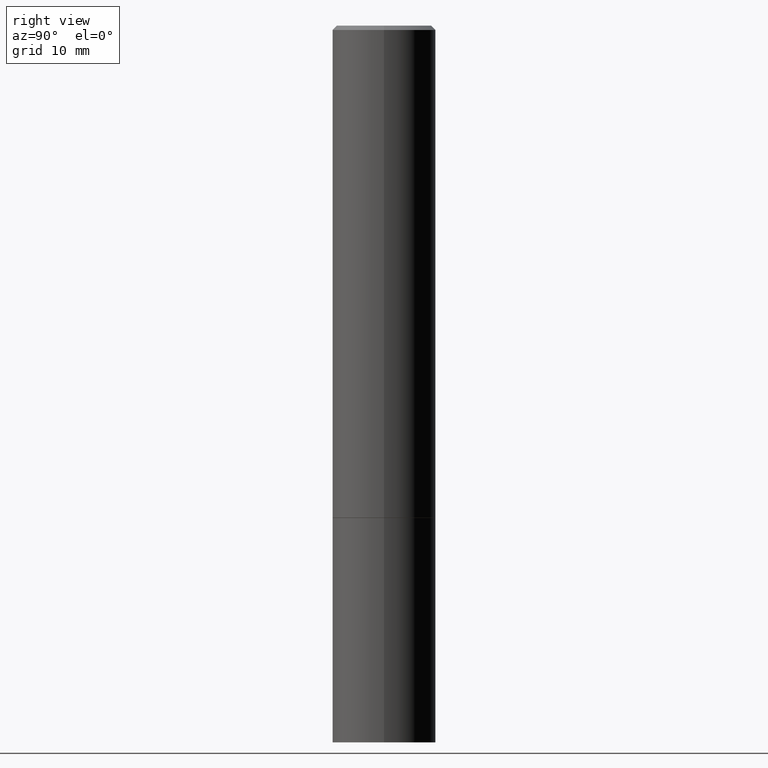
[diagram: clean part render]
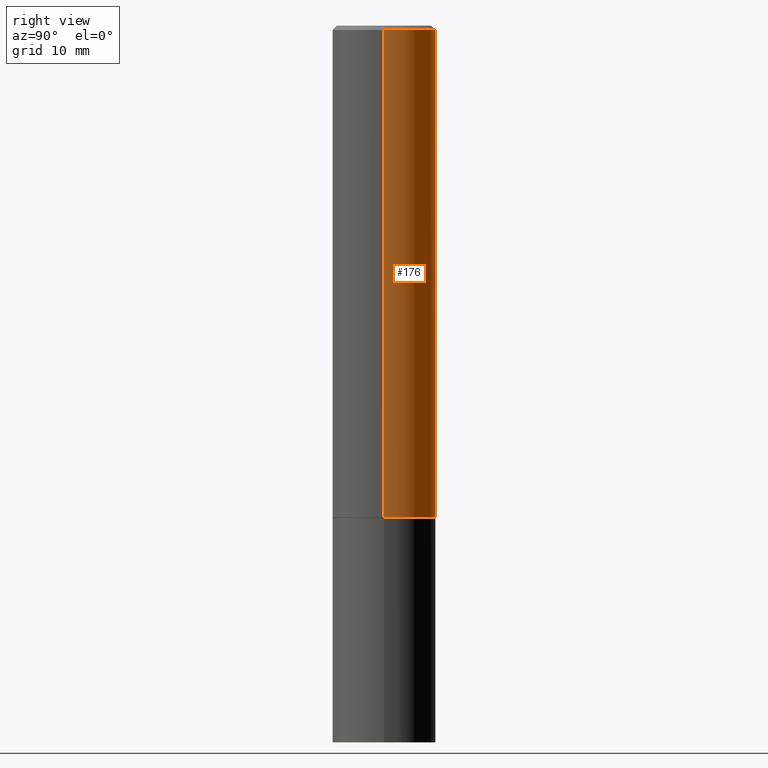
[diagram: same view with one face highlighted and labeled with its STEP entity id]
A machine part, right view. The second image highlights one B-rep face of the part: STEP entity #176.
In plain terms, the highlighted cylindrical surface (partial cylindrical patch) has radius 5.9995 mm, axis along (-0, 0, 1).
Its self-contained STEP definition (entity closure, byte-faithful):
#2 = DIRECTION ( 'NONE',  ( -2.445468806185136597E-29, 3.491481338843145583E-15, 1.000000000000000000 ) ) ;
#5 = EDGE_CURVE ( 'NONE', #178, #274, #170, .T. ) ;
#17 = CARTESIAN_POINT ( 'NONE',  ( 0.2361999999999999933, -9.481117575628557435E-15, -2.243100000000000094 ) ) ;
#31 = CARTESIAN_POINT ( 'NONE',  ( -0.2362000000000000210, -2.272483767102602555E-15, -2.243100000000000094 ) ) ;
#33 = EDGE_CURVE ( 'NONE', #274, #241, #222, .T. ) ;
#62 = AXIS2_PLACEMENT_3D ( 'NONE', #94, #318, #68 ) ;
#68 = DIRECTION ( 'NONE',  ( 1.000000000000000000, -6.982962677686266711E-15, 4.876176775795935793E-29 ) ) ;
#76 = ORIENTED_EDGE ( 'NONE', *, *, #276, .F. ) ;
#80 = CARTESIAN_POINT ( 'NONE',  ( 0.2361999999999998545, -1.649375784469495145E-15, 1.151752954442999387E-29 ) ) ;
#88 = DIRECTION ( 'NONE',  ( 1.000000000000000000, -6.982962677686269077E-15, 0.000000000000000000 ) ) ;
#94 = CARTESIAN_POINT ( 'NONE',  ( 0.000000000000000000, 0.000000000000000000, 0.000000000000000000 ) ) ;
#100 = ORIENTED_EDGE ( 'NONE', *, *, #33, .T. ) ;
#105 = EDGE_CURVE ( 'NONE', #178, #127, #345, .T. ) ;
#107 = DIRECTION ( 'NONE',  ( -2.445468806185136597E-29, 3.491481338843145583E-15, 1.000000000000000000 ) ) ;
#112 = EDGE_LOOP ( 'NONE', ( #272, #100, #76, #220 ) ) ;
#127 = VERTEX_POINT ( 'NONE', #133 ) ;
#132 = CARTESIAN_POINT ( 'NONE',  ( 4.890937612370285420E-31, -6.982962677686308865E-17, -0.02000000000000005246 ) ) ;
#133 = CARTESIAN_POINT ( 'NONE',  ( 0.2361999999999997157, -1.690279253850496996E-15, -0.02000000000000005246 ) ) ;
#170 = CIRCLE ( 'NONE', #301, 0.2361999999999999933 ) ;
#176 = ADVANCED_FACE ( 'NONE', ( #233 ), #235, .T. ) ;
#178 = VERTEX_POINT ( 'NONE', #17 ) ;
#194 = CIRCLE ( 'NONE', #361, 0.2361999999999997157 ) ;
#197 = CARTESIAN_POINT ( 'NONE',  ( 5.485431079153880270E-29, -7.831741791159060910E-15, -2.243100000000000094 ) ) ;
#220 = ORIENTED_EDGE ( 'NONE', *, *, #105, .F. ) ;
#222 = LINE ( 'NONE', #254, #291 ) ;
#233 = FACE_OUTER_BOUND ( 'NONE', #112, .T. ) ;
#235 = CYLINDRICAL_SURFACE ( 'NONE', #62, 0.2361999999999998545 ) ;
#241 = VERTEX_POINT ( 'NONE', #328 ) ;
#254 = CARTESIAN_POINT ( 'NONE',  ( -0.2361999999999998545, 1.678301941865355605E-15, -1.161852468318208056E-29 ) ) ;
#272 = ORIENTED_EDGE ( 'NONE', *, *, #5, .T. ) ;
#274 = VERTEX_POINT ( 'NONE', #31 ) ;
#276 = EDGE_CURVE ( 'NONE', #127, #241, #194, .T. ) ;
#291 = VECTOR ( 'NONE', #366, 39.37007874015748143 ) ;
#301 = AXIS2_PLACEMENT_3D ( 'NONE', #197, #107, #88 ) ;
#302 = DIRECTION ( 'NONE',  ( 1.000000000000000000, -6.982962677686266711E-15, 0.000000000000000000 ) ) ;
#318 = DIRECTION ( 'NONE',  ( -2.445468806185136597E-29, 3.491481338843145583E-15, 1.000000000000000000 ) ) ;
#322 = VECTOR ( 'NONE', #337, 39.37007874015748143 ) ;
#328 = CARTESIAN_POINT ( 'NONE',  ( -0.2361999999999997157, 1.579546157692631255E-15, -0.02000000000000005246 ) ) ;
#337 = DIRECTION ( 'NONE',  ( -2.445468806185136877E-29, 3.491481338843145188E-15, 1.000000000000000000 ) ) ;
#345 = LINE ( 'NONE', #80, #322 ) ;
#361 = AXIS2_PLACEMENT_3D ( 'NONE', #132, #2, #302 ) ;
#366 = DIRECTION ( 'NONE',  ( -2.445468806185136877E-29, 3.491481338843145188E-15, 1.000000000000000000 ) ) ;